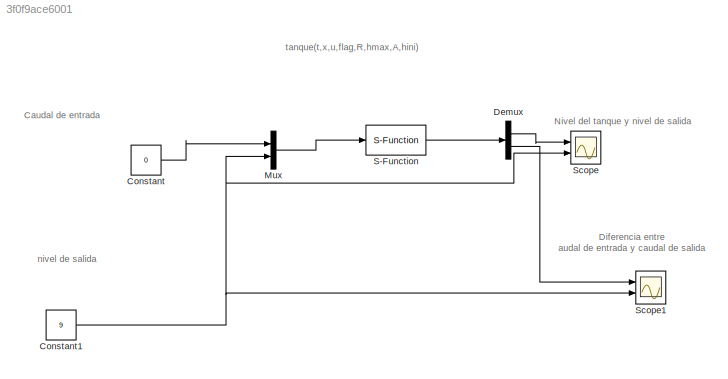
MODEL slx_3f0f9ace6001
KIND model
CONFIG AbsTol = auto
CONFIG FixedStep = auto
CONFIG MaxStep = auto
CONFIG MinStep = auto
CONFIG RelTol = 1e-3
CONFIG SampleTimeConstraint = Unconstrained
CONFIG Solver = ode45
CONFIG SolverMode = Auto
CONFIG SolverName = ode45
CONFIG StartTime = 0.0
CONFIG StopTime = 45
BLOCK [Constant] Constant
  Value = 0
BLOCK [Constant] Constant1
  Value = 9
BLOCK [Demux] Demux
  DisplayOption = bar
  Outputs = 2
  Ports = [1, 2]
BLOCK [Mux] Mux
  DisplayOption = bar
  Inputs = 2
  Ports = [2, 1]
BLOCK [S-Function] S-Function
  EnableBusSupport = off
  FunctionName = tanque
  Parameters = 1 10 1 4
  Ports = [1, 1]
  SFunctionDeploymentMode = off
BLOCK [Scope] Scope
  NumInputPorts = 2
  Ports = [2]
  ScopeSpecificationString = Simulink.scopes.TimeScopeBlockCfg('CurrentConfiguration', extmgr.ConfigurationSet(extmgr.Configuration('Core','General UI',true,'FigureColor',[0.156862745098039 0.156862745098039 0.156862745098039]),extmgr.Configuration('Core','Source UI',true),extmgr.Configuration('Sources','WiredSimulink',true,'DataLoggingSaveFormat','StructureWithTime','DataLoggingDecimation','1','DataLoggingDecimateData',true)...<+3944ch>
BLOCK [Scope] Scope1
  NumInputPorts = 2
  Ports = [2]
  ScopeSpecificationString = Simulink.scopes.TimeScopeBlockCfg('CurrentConfiguration', extmgr.ConfigurationSet(extmgr.Configuration('Core','General UI',true),extmgr.Configuration('Core','Source UI',true),extmgr.Configuration('Sources','WiredSimulink',true,'DataLoggingVariableName','ScopeData1'),extmgr.Configuration('Visuals','Time Domain',true,'SerializedDisplays',{struct('MinYLimReal','-3.64058','MaxYLimReal','10.40451','YLa...<+1434ch>
ANNOTATION (root): Diferencia entre audal de entrada y caudal de salida
ANNOTATION (root): tanque(t,x,u,flag,R,hmax,A,hini)
ANNOTATION (root): Caudal de entrada
ANNOTATION (root): Nivel del tanque y nivel de salida
ANNOTATION (root): nivel de salida
NET Constant1:1 -> Mux:2, Scope1:2, Scope:2
LINE Constant:1 -> Mux:1
LINE Demux:1 -> Scope:1
LINE Demux:2 -> Scope1:1
LINE Mux:1 -> S-Function:1
LINE S-Function:1 -> Demux:1
note: NET lines group one-source signal fan-out (src -> all destinations, sorted); 1:1 wires keep LINE
